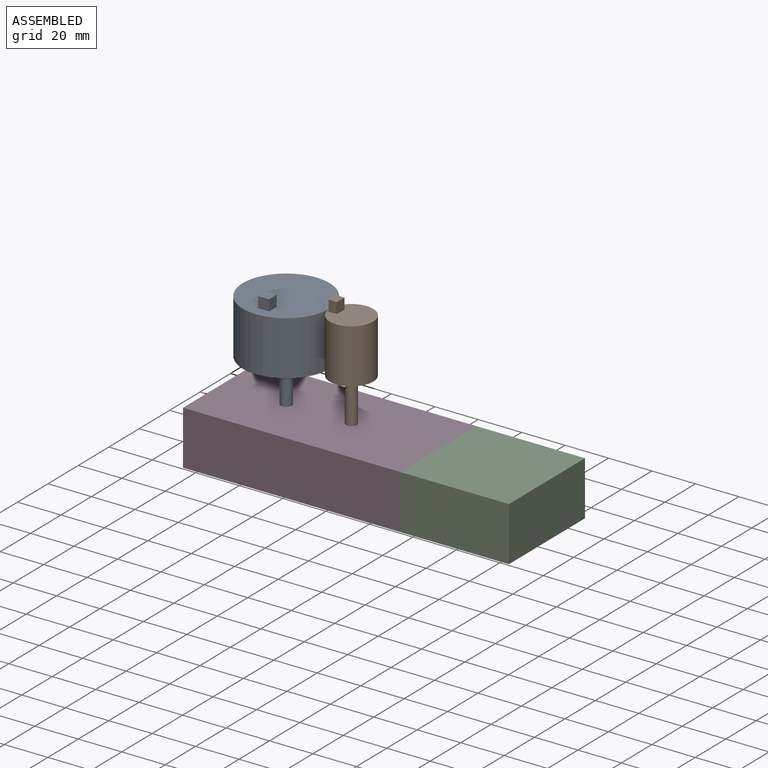
[diagram: assembled view]
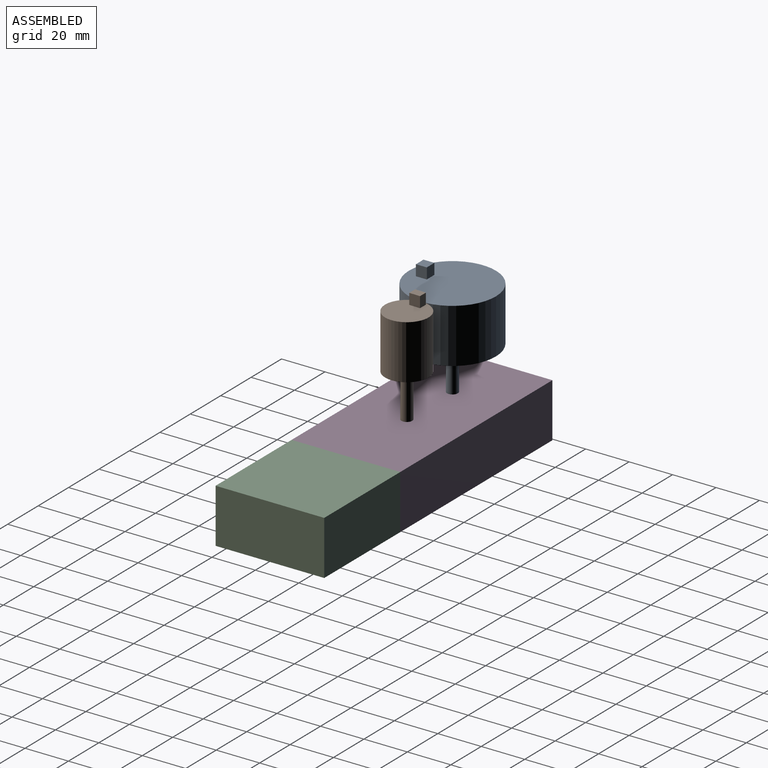
[diagram: assembled view, second angle]
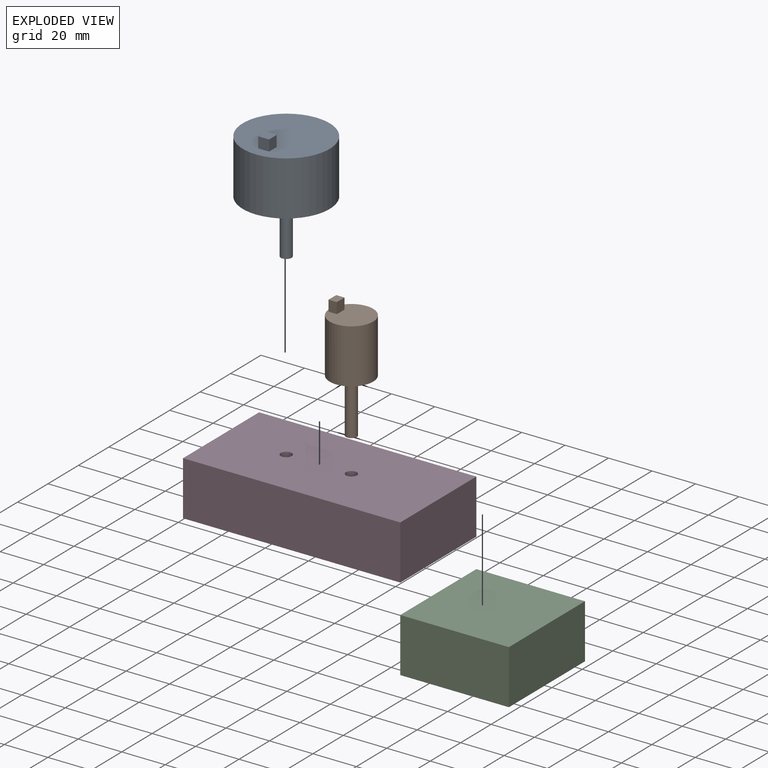
[diagram: exploded view]
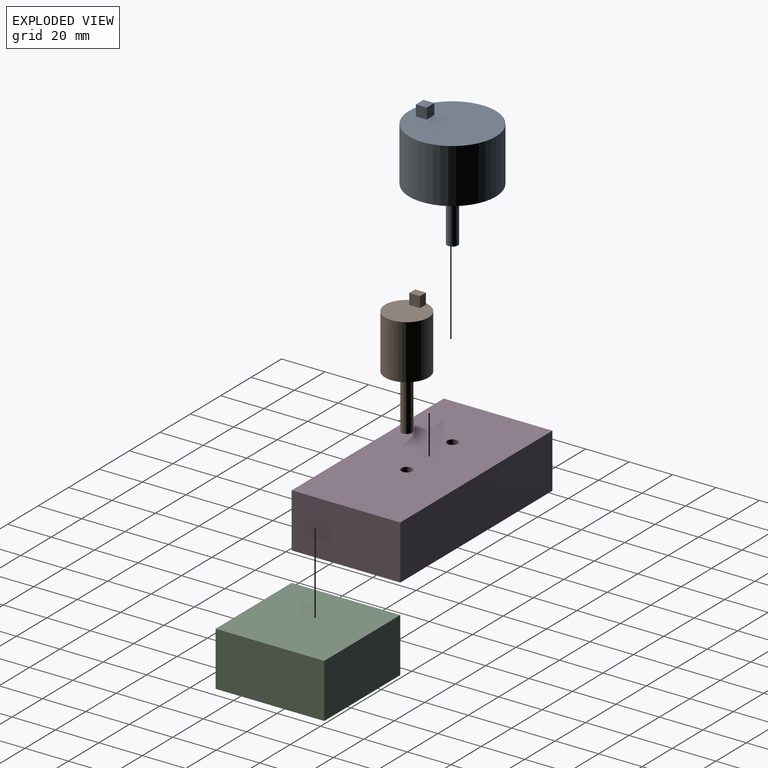
[diagram: exploded view, second angle]
ASSEMBLY  parts=4 mates=3
PART A: 10 faces, bbox 40x40x55 mm
  f0: cylinder r=2.5mm len=25mm, axis (0,0,1), area 392.7mm2, adj f1,f4
  f1: plane 5x5mm, normal (0,0,-1), area 19.6mm2, adj f0
  f2: plane 40x40mm, normal (0,0,1), area 1231.6mm2, adj f3,f5,f6,f7,f8
  f3: cylinder r=20mm len=40mm, axis (0,0,1), area 3141.6mm2, adj f2,f4
  f4: plane 40x40mm, normal (0,0,-1), area 1237mm2, adj f0,f3
  f5: plane 5x5mm, normal (1,0,0), area 25mm2, adj f2,f6,f8,f9
  f6: plane 5x5mm, normal (0,1,0), area 25mm2, adj f2,f5,f7,f9
  f7: plane 5x5mm, normal (-1,0,0), area 25mm2, adj f2,f6,f8,f9
  f8: plane 5x5mm, normal (0,-1,0), area 25mm2, adj f2,f5,f7,f9
  f9: plane 5x5mm, normal (0,0,1), area 25mm2, adj f5,f6,f7,f8
PART B: 10 faces, bbox 20x20x55 mm
  f0: plane 5x5mm, normal (1,0,0), area 25mm2, adj f1,f3,f4,f7
  f1: plane 5x3.84mm, normal (0,1,0), area 19.2mm2, adj f0,f2,f4,f7
  f2: plane 5x5mm, normal (-1,0,0), area 25mm2, adj f1,f3,f4,f7
  f3: plane 5x3.84mm, normal (0,-1,0), area 19.2mm2, adj f0,f2,f4,f7
  f4: plane 5x3.84mm, normal (0,0,1), area 19.2mm2, adj f0,f1,f2,f3
  f5: cylinder r=10mm len=25mm, axis (0,0,1), area 1570.8mm2, adj f6,f7
  f6: plane 20x20mm, normal (0,0,-1), area 294.5mm2, adj f5,f8
  f7: plane 20x20mm, normal (0,0,1), area 295mm2, adj f0,f1,f2,f3,f5
  f8: cylinder r=2.5mm len=25mm, axis (0,0,1), area 392.7mm2, adj f6,f9
  f9: plane 5x5mm, normal (0,0,-1), area 19.6mm2, adj f8
PART C: 10 faces, bbox 50x50x25 mm
  f0: plane 50x25mm, normal (1,0,0), area 1250mm2, adj f1,f3,f4,f5
  f1: plane 50x25mm, normal (0,1,0), area 1250mm2, adj f0,f2,f4,f5
  f2: plane 50x25mm, normal (-1,0,0), area 1250mm2, adj f1,f3,f4,f5
  f3: plane 50x25mm, normal (0,-1,0), area 1250mm2, adj f0,f2,f4,f5
  f4: plane 50x50mm, normal (0,0,-1), area 2460.7mm2, adj f0,f1,f2,f3,f6,f8
  f5: plane 50x50mm, normal (0,0,1), area 2500mm2, adj f0,f1,f2,f3
  f6: cylinder r=2.5mm len=5mm, axis (0,0,-1), area 78.5mm2, adj f4,f7
  f7: plane 5x5mm, normal (0,0,-1), area 19.6mm2, adj f6
  f8: cylinder r=2.5mm len=5mm, axis (0,0,-1), area 78.5mm2, adj f4,f9
  f9: plane 5x5mm, normal (0,0,-1), area 19.6mm2, adj f8
PART D: 10 faces, bbox 100x50x25 mm
  f0: plane 50x25mm, normal (1,0,0), area 1250mm2, adj f1,f3,f4,f5
  f1: plane 100x25mm, normal (0,1,0), area 2500mm2, adj f0,f2,f4,f5
  f2: plane 50x25mm, normal (-1,0,0), area 1250mm2, adj f1,f3,f4,f5
  f3: plane 100x25mm, normal (0,-1,0), area 2500mm2, adj f0,f2,f4,f5
  f4: plane 100x50mm, normal (0,0,-1), area 4960.7mm2, adj f0,f1,f2,f3,f6,f8
  f5: plane 100x50mm, normal (0,0,1), area 5000mm2, adj f0,f1,f2,f3
  f6: cylinder r=2.5mm len=5mm, axis (0,0,-1), area 78.5mm2, adj f4,f7
  f7: plane 5x5mm, normal (0,0,-1), area 19.6mm2, adj f6
  f8: cylinder r=2.5mm len=5mm, axis (0,0,-1), area 78.5mm2, adj f4,f9
  f9: plane 5x5mm, normal (0,0,-1), area 19.6mm2, adj f8
PLACE A rot(axis=(0,0,1),90.4deg) t=(-20.15,16.73,69.78)mm
PLACE B rot(axis=(0,0,1),179.1deg) t=(20,-3.42,69.78)mm
PLACE C t=(75,-3.26,24.78)mm
PLACE D rot(axis=(1,0,0),180deg) t=(0,-3.26,-0.22)mm fixed
MATE fastened D.f4 <-> C.f5  axis (0,0,1) through (50,21.74,24.78)mm
MATE revolute A.f0 <-> D.f8  axis (0,0,-1) through (-20,-3.26,19.78)mm
MATE revolute B.f8 <-> D.f6  axis (0,0,-1) through (10,-3.26,19.78)mm
